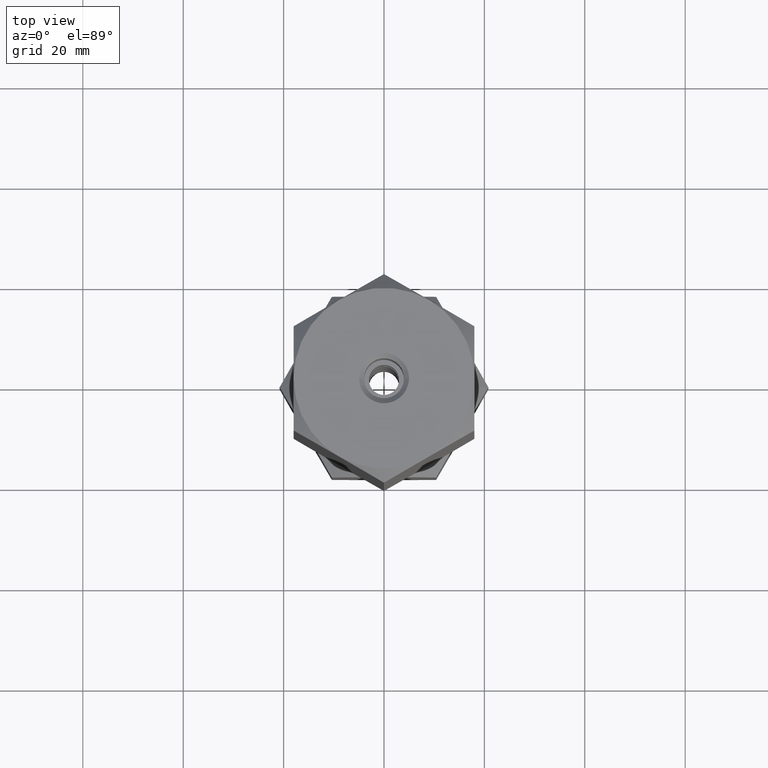
[diagram: clean part render]
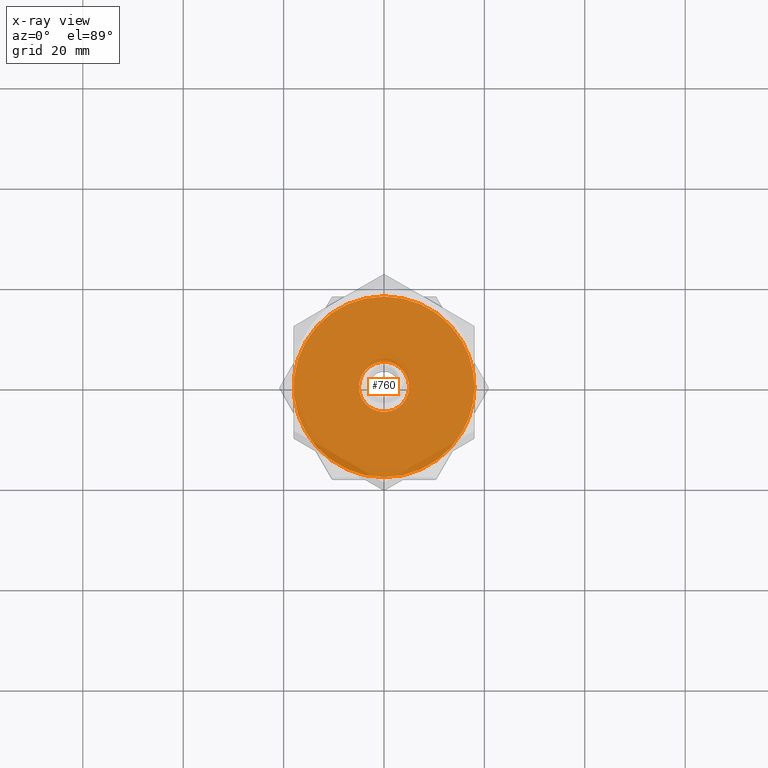
[diagram: x-ray — body ghosted, one internal face saturated and labeled with its STEP entity id]
A machine part, top view, then the same camera in x-ray: the body is ghosted and one INTERNAL B-rep face — a face not visible from any outside direction — is saturated and labeled: STEP entity #760.
In plain terms, the highlighted planar face has unit normal (0, 0, 1).
Its self-contained STEP definition (entity closure, byte-faithful):
#7 = CARTESIAN_POINT ( 'NONE',  ( 18.00000000000000000, 0.000000000000000000, 33.33333333333330017 ) ) ;
#26 = CARTESIAN_POINT ( 'NONE',  ( -5.000000000000000000, 0.000000000000000000, 33.33333333333330017 ) ) ;
#110 = ORIENTED_EDGE ( 'NONE', *, *, #1075, .T. ) ;
#117 = EDGE_CURVE ( 'NONE', #1300, #1760, #277, .T. ) ;
#133 = CARTESIAN_POINT ( 'NONE',  ( 0.000000000000000000, 0.000000000000000000, 33.33333333333330017 ) ) ;
#175 = EDGE_LOOP ( 'NONE', ( #1940, #1280, #1046, #1118, #620, #1998, #1697 ) ) ;
#202 = DIRECTION ( 'NONE',  ( 0.000000000000000000, 0.000000000000000000, 1.000000000000000000 ) ) ;
#207 = VERTEX_POINT ( 'NONE', #288 ) ;
#211 = CARTESIAN_POINT ( 'NONE',  ( 0.000000000000000000, 0.000000000000000000, 33.33333333333330017 ) ) ;
#231 = DIRECTION ( 'NONE',  ( 0.000000000000000000, 0.000000000000000000, 1.000000000000000000 ) ) ;
#240 = AXIS2_PLACEMENT_3D ( 'NONE', #1385, #1228, #2029 ) ;
#250 = CARTESIAN_POINT ( 'NONE',  ( 5.000000000000000000, 6.123233995736766282E-16, 33.33333333333330017 ) ) ;
#266 = DIRECTION ( 'NONE',  ( 0.000000000000000000, 0.000000000000000000, -1.000000000000000000 ) ) ;
#277 = CIRCLE ( 'NONE', #240, 18.00000000000000000 ) ;
#288 = CARTESIAN_POINT ( 'NONE',  ( 15.58845726811989252, 9.000000000000003553, 33.33333333333330017 ) ) ;
#289 = CIRCLE ( 'NONE', #1638, 5.000000000000000000 ) ;
#378 = DIRECTION ( 'NONE',  ( 1.000000000000000000, 0.000000000000000000, 0.000000000000000000 ) ) ;
#395 = CARTESIAN_POINT ( 'NONE',  ( 0.000000000000000000, 0.000000000000000000, 33.33333333333330017 ) ) ;
#422 = EDGE_CURVE ( 'NONE', #686, #641, #1632, .T. ) ;
#476 = CIRCLE ( 'NONE', #1398, 18.00000000000000000 ) ;
#501 = DIRECTION ( 'NONE',  ( 0.000000000000000000, 0.000000000000000000, 1.000000000000000000 ) ) ;
#511 = CIRCLE ( 'NONE', #545, 18.00000000000000000 ) ;
#545 = AXIS2_PLACEMENT_3D ( 'NONE', #1851, #893, #876 ) ;
#579 = CIRCLE ( 'NONE', #844, 18.00000000000000000 ) ;
#612 = AXIS2_PLACEMENT_3D ( 'NONE', #395, #231, #861 ) ;
#620 = ORIENTED_EDGE ( 'NONE', *, *, #422, .T. ) ;
#641 = VERTEX_POINT ( 'NONE', #1270 ) ;
#653 = CARTESIAN_POINT ( 'NONE',  ( 0.000000000000000000, 0.000000000000000000, 33.33333333333330017 ) ) ;
#665 = VERTEX_POINT ( 'NONE', #1095 ) ;
#686 = VERTEX_POINT ( 'NONE', #1900 ) ;
#692 = EDGE_CURVE ( 'NONE', #665, #1300, #579, .T. ) ;
#730 = VERTEX_POINT ( 'NONE', #26 ) ;
#754 = ORIENTED_EDGE ( 'NONE', *, *, #1916, .T. ) ;
#760 = ADVANCED_FACE ( 'NONE', ( #1644, #1019 ), #854, .T. ) ;
#761 = DIRECTION ( 'NONE',  ( 0.000000000000000000, 0.000000000000000000, 1.000000000000000000 ) ) ;
#831 = EDGE_CURVE ( 'NONE', #207, #1424, #476, .T. ) ;
#844 = AXIS2_PLACEMENT_3D ( 'NONE', #1589, #501, #1750 ) ;
#854 = PLANE ( 'NONE',  #612 ) ;
#861 = DIRECTION ( 'NONE',  ( 1.000000000000000000, 0.000000000000000000, -0.000000000000000000 ) ) ;
#876 = DIRECTION ( 'NONE',  ( 1.000000000000000000, 0.000000000000000000, 0.000000000000000000 ) ) ;
#890 = DIRECTION ( 'NONE',  ( -1.000000000000000000, 0.000000000000000000, 0.000000000000000000 ) ) ;
#893 = DIRECTION ( 'NONE',  ( 0.000000000000000000, 0.000000000000000000, 1.000000000000000000 ) ) ;
#981 = DIRECTION ( 'NONE',  ( 1.000000000000000000, 0.000000000000000000, 0.000000000000000000 ) ) ;
#986 = CARTESIAN_POINT ( 'NONE',  ( 0.000000000000000000, 0.000000000000000000, 33.33333333333330017 ) ) ;
#1019 = FACE_OUTER_BOUND ( 'NONE', #175, .T. ) ;
#1046 = ORIENTED_EDGE ( 'NONE', *, *, #831, .T. ) ;
#1075 = EDGE_CURVE ( 'NONE', #730, #1674, #1772, .T. ) ;
#1095 = CARTESIAN_POINT ( 'NONE',  ( 3.004629197474318851E-15, -18.00000000000000000, 33.33333333333330017 ) ) ;
#1118 = ORIENTED_EDGE ( 'NONE', *, *, #1510, .T. ) ;
#1138 = AXIS2_PLACEMENT_3D ( 'NONE', #133, #761, #1878 ) ;
#1228 = DIRECTION ( 'NONE',  ( 0.000000000000000000, 0.000000000000000000, 1.000000000000000000 ) ) ;
#1270 = CARTESIAN_POINT ( 'NONE',  ( -15.58845726811989607, -9.000000000000003553, 33.33333333333330017 ) ) ;
#1276 = DIRECTION ( 'NONE',  ( 0.000000000000000000, 0.000000000000000000, -1.000000000000000000 ) ) ;
#1280 = ORIENTED_EDGE ( 'NONE', *, *, #1559, .T. ) ;
#1300 = VERTEX_POINT ( 'NONE', #1359 ) ;
#1359 = CARTESIAN_POINT ( 'NONE',  ( 15.58845726811989429, -9.000000000000001776, 33.33333333333330017 ) ) ;
#1385 = CARTESIAN_POINT ( 'NONE',  ( 0.000000000000000000, 0.000000000000000000, 33.33333333333330017 ) ) ;
#1398 = AXIS2_PLACEMENT_3D ( 'NONE', #986, #202, #1593 ) ;
#1424 = VERTEX_POINT ( 'NONE', #1795 ) ;
#1466 = EDGE_LOOP ( 'NONE', ( #110, #754 ) ) ;
#1504 = AXIS2_PLACEMENT_3D ( 'NONE', #2042, #1276, #1874 ) ;
#1510 = EDGE_CURVE ( 'NONE', #1424, #686, #1706, .T. ) ;
#1559 = EDGE_CURVE ( 'NONE', #1760, #207, #1667, .T. ) ;
#1589 = CARTESIAN_POINT ( 'NONE',  ( 0.000000000000000000, 0.000000000000000000, 33.33333333333330017 ) ) ;
#1593 = DIRECTION ( 'NONE',  ( 1.000000000000000000, 0.000000000000000000, 0.000000000000000000 ) ) ;
#1632 = CIRCLE ( 'NONE', #2037, 18.00000000000000000 ) ;
#1638 = AXIS2_PLACEMENT_3D ( 'NONE', #1683, #266, #890 ) ;
#1644 = FACE_BOUND ( 'NONE', #1466, .T. ) ;
#1667 = CIRCLE ( 'NONE', #1970, 18.00000000000000000 ) ;
#1674 = VERTEX_POINT ( 'NONE', #250 ) ;
#1683 = CARTESIAN_POINT ( 'NONE',  ( 0.000000000000000000, 0.000000000000000000, 33.33333333333330017 ) ) ;
#1697 = ORIENTED_EDGE ( 'NONE', *, *, #692, .T. ) ;
#1706 = CIRCLE ( 'NONE', #1138, 18.00000000000000000 ) ;
#1746 = DIRECTION ( 'NONE',  ( 0.000000000000000000, 0.000000000000000000, 1.000000000000000000 ) ) ;
#1750 = DIRECTION ( 'NONE',  ( 1.000000000000000000, 0.000000000000000000, 0.000000000000000000 ) ) ;
#1760 = VERTEX_POINT ( 'NONE', #7 ) ;
#1772 = CIRCLE ( 'NONE', #1504, 5.000000000000000000 ) ;
#1795 = CARTESIAN_POINT ( 'NONE',  ( 0.000000000000000000, 18.00000000000000000, 33.33333333333330017 ) ) ;
#1828 = EDGE_CURVE ( 'NONE', #641, #665, #511, .T. ) ;
#1851 = CARTESIAN_POINT ( 'NONE',  ( 0.000000000000000000, 0.000000000000000000, 33.33333333333330017 ) ) ;
#1874 = DIRECTION ( 'NONE',  ( -1.000000000000000000, 0.000000000000000000, 0.000000000000000000 ) ) ;
#1878 = DIRECTION ( 'NONE',  ( 1.000000000000000000, 0.000000000000000000, 0.000000000000000000 ) ) ;
#1900 = CARTESIAN_POINT ( 'NONE',  ( -15.58845726811989607, 8.999999999999996447, 33.33333333333330017 ) ) ;
#1916 = EDGE_CURVE ( 'NONE', #1674, #730, #289, .T. ) ;
#1940 = ORIENTED_EDGE ( 'NONE', *, *, #117, .T. ) ;
#1970 = AXIS2_PLACEMENT_3D ( 'NONE', #653, #1746, #981 ) ;
#1972 = DIRECTION ( 'NONE',  ( 0.000000000000000000, 0.000000000000000000, 1.000000000000000000 ) ) ;
#1998 = ORIENTED_EDGE ( 'NONE', *, *, #1828, .T. ) ;
#2029 = DIRECTION ( 'NONE',  ( 1.000000000000000000, 0.000000000000000000, 0.000000000000000000 ) ) ;
#2037 = AXIS2_PLACEMENT_3D ( 'NONE', #211, #1972, #378 ) ;
#2042 = CARTESIAN_POINT ( 'NONE',  ( 0.000000000000000000, 0.000000000000000000, 33.33333333333330017 ) ) ;